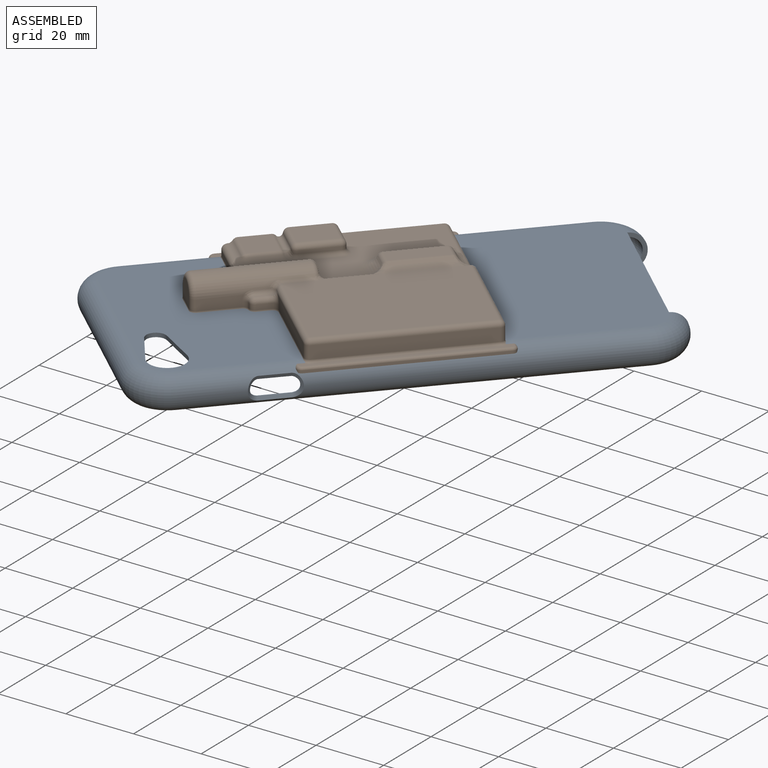
[diagram: assembled view]
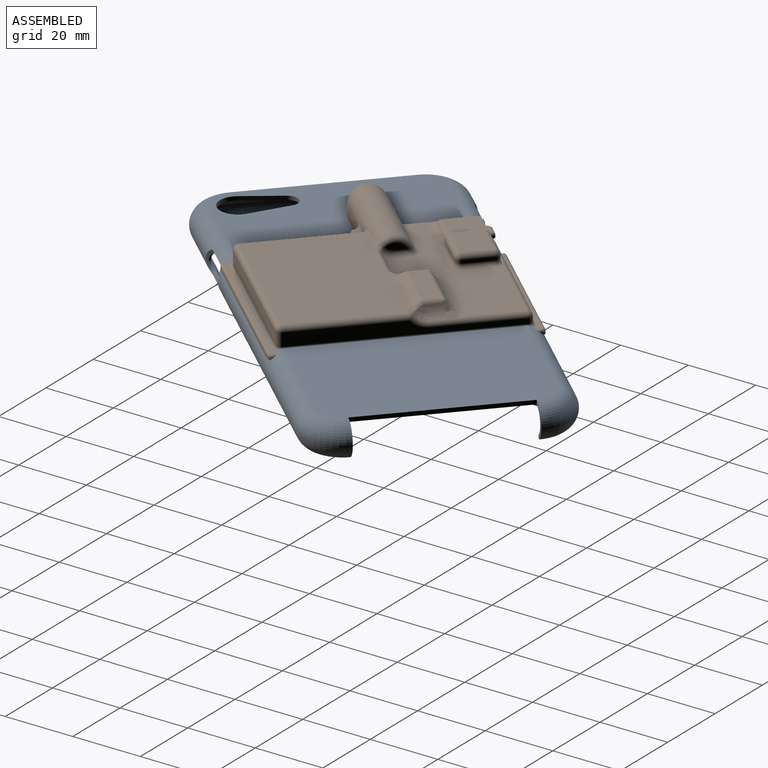
[diagram: assembled view, second angle]
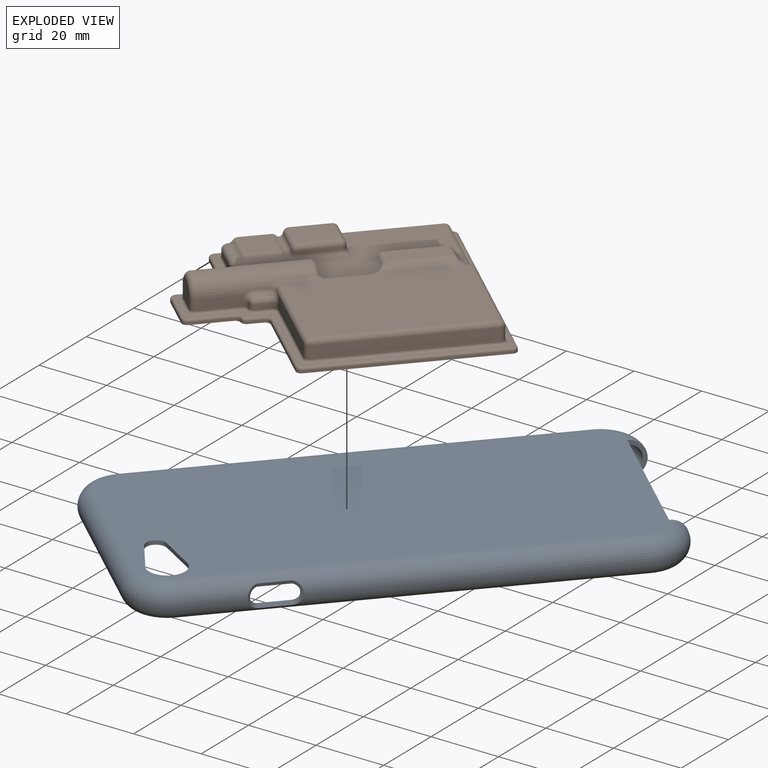
[diagram: exploded view]
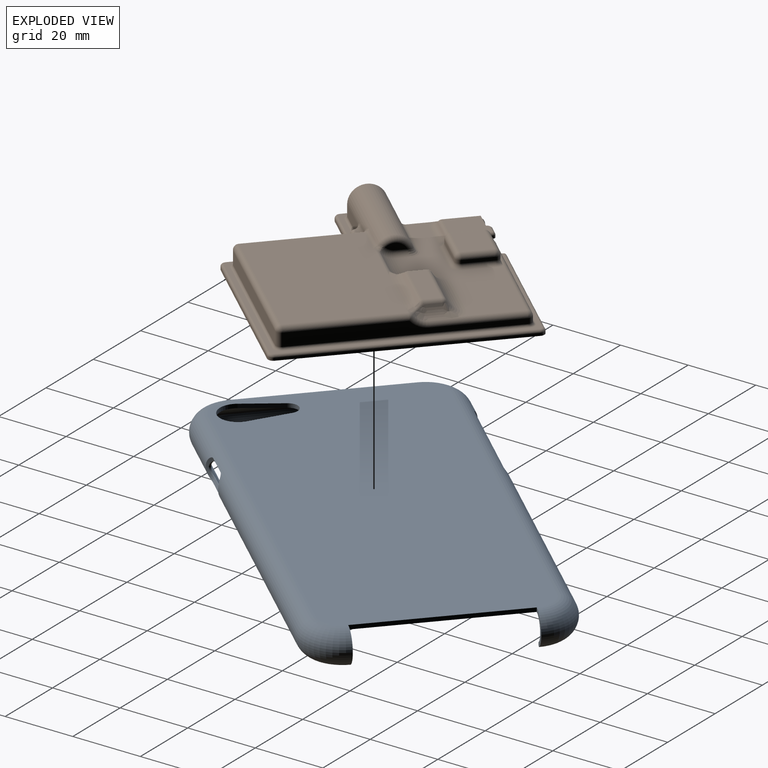
[diagram: exploded view, second angle]
ASSEMBLY  parts=2 mates=2
PART A: 61 faces, bbox 72x143.2x9.4 mm
  f0: plane 131.13x59.96mm, normal (0,0,1), area 7665.3mm2, adj f2,f4,f6,f7,f8,f9,f10,f23
  f1: plane 131.13x59.96mm, normal (0,0,-1), area 7665.3mm2, adj f3,f5,f18,f19,f20,f21,f22,f23
  f2: cylinder r=3.88mm len=117.94mm, axis (0,1,0), area 1146.3mm2, adj f0,f7,f8,f11,f34,f35,f36,f37
  f3: cylinder r=5.07mm len=117.94mm, axis (0,1,0), area 1472.9mm2, adj f1,f18,f21,f43,f45,f46,f47,f48
  f4: cylinder r=3.88mm len=117.94mm, axis (0,1,0), area 1010.2mm2, adj f0,f6,f9,f13,f26,f27,f28,f29
  f5: cylinder r=5.07mm len=117.94mm, axis (0,1,0), area 1262.6mm2, adj f1,f19,f20,f39,f49,f50,f51,f52
  f6: torus R=6.59mm, axis (0,0,-1), area 147.8mm2, adj f0,f4,f17,f25
  f7: torus R=6.59mm, axis (0,0,-1), area 147.8mm2, adj f0,f2,f14,f24
  f8: torus R=6.59mm, axis (0,0,-1), area 147.8mm2, adj f0,f2,f10,f15
  f9: torus R=6.59mm, axis (0,0,-1), area 147.8mm2, adj f0,f4,f10,f16
  f10: cylinder r=3.88mm len=46.77mm, axis (-1,0,0), area 470mm2, adj f0,f8,f9,f12
  f11: plane 117.94x0.51mm, normal (-1,0,0), area 60.3mm2, adj f2,f14,f15,f43
  f12: plane 46.77x0.51mm, normal (0,-1,0), area 23.9mm2, adj f10,f15,f16,f41
  f13: plane 117.94x0.51mm, normal (1,0,0), area 60.3mm2, adj f4,f16,f17,f39
  f14: cylinder r=8.62mm len=8.62mm, axis (0,0,1), area 6.9mm2, adj f7,f11,f24,f44
  f15: cylinder r=8.62mm len=8.62mm, axis (0,0,1), area 6.9mm2, adj f8,f11,f12,f42
  f16: cylinder r=8.62mm len=8.62mm, axis (0,0,1), area 6.9mm2, adj f9,f12,f13,f40
  f17: cylinder r=8.62mm len=8.62mm, axis (0,0,1), area 6.9mm2, adj f6,f13,f25,f38
  f18: torus R=6.59mm, axis (0,0,-1), area 208.7mm2, adj f1,f3,f24,f44
  f19: torus R=6.59mm, axis (0,0,-1), area 208.7mm2, adj f1,f5,f25,f38
  f20: torus R=6.59mm, axis (0,0,-1), area 208.7mm2, adj f1,f5,f22,f40
  f21: torus R=6.59mm, axis (0,0,-1), area 208.7mm2, adj f1,f3,f22,f42
  f22: cylinder r=5.07mm len=46.77mm, axis (-1,0,0), area 607.2mm2, adj f1,f20,f21,f41
  f23: plane 46.77x1.2mm, normal (0,-1,0), area 56.1mm2, adj f0,f1,f24,f25
  f24: plane 9.39x5.08mm, normal (-1,0,0), area 14.2mm2, adj f7,f14,f18,f23,f44
  f25: plane 9.39x5.08mm, normal (1,0,0), area 14.2mm2, adj f6,f17,f19,f23,f38
  f26: plane 32.52x0.23mm, normal (0,0,-1), area 7.4mm2, adj f4,f27,f33,f52
  f27: cylinder r=2.2mm len=2.2mm, axis (1,0,0), area 1.4mm2, adj f4,f26,f28,f54
  f28: plane 0.57x0.15mm, normal (0,1,0), area 0.1mm2, adj f4,f27,f29,f56
  f29: cylinder r=2.2mm len=2.2mm, axis (1,0,0), area 1.3mm2, adj f4,f28,f30,f55
  f30: plane 32.52x0.19mm, normal (0,0,1), area 6.1mm2, adj f4,f29,f31,f53
  f31: cylinder r=2.2mm len=2.2mm, axis (1,0,0), area 1.3mm2, adj f4,f30,f32,f51
  f32: plane 0.57x0.15mm, normal (0,-1,0), area 0.1mm2, adj f4,f31,f33,f49
  f33: cylinder r=2.2mm len=2.2mm, axis (1,0,0), area 1.4mm2, adj f4,f26,f32,f50
  f34: cylinder r=2.24mm len=4.48mm, axis (-1,0,0), area 2.8mm2, adj f2,f35,f37,f47
  f35: plane 8.14x0.21mm, normal (0,0,1), area 1.7mm2, adj f2,f34,f36,f45
  f36: cylinder r=2.24mm len=4.48mm, axis (-1,0,0), area 2.8mm2, adj f2,f35,f37,f46
  f37: plane 8.14x0.21mm, normal (0,0,-1), area 1.7mm2, adj f2,f34,f36,f48
  f38: torus R=9.12mm, axis (0,0,1), area 15.1mm2, adj f17,f19,f25,f39
  f39: cylinder r=0.5mm len=117.94mm, axis (0,1,0), area 127mm2, adj f5,f13,f38,f40
  f40: torus R=9.12mm, axis (0,0,1), area 15.1mm2, adj f16,f20,f39,f41
  f41: cylinder r=0.5mm len=46.77mm, axis (-1,0,0), area 50.4mm2, adj f12,f22,f40,f42
  f42: torus R=9.12mm, axis (0,0,1), area 15.1mm2, adj f15,f21,f41,f43
  f43: cylinder r=0.5mm len=117.94mm, axis (0,1,0), area 127mm2, adj f3,f11,f42,f44
  f44: torus R=9.12mm, axis (0,0,1), area 15.1mm2, adj f14,f18,f24,f43
  f45: plane 8.14x1.05mm, normal (0.91,0,0.42), area 9.4mm2, adj f3,f35,f46,f47
  f46: bspline ~6.59x2.88mm, area 9mm2, adj f3,f36,f45,f48
  f47: bspline ~6.59x2.88mm, area 9mm2, adj f3,f34,f45,f48
  f48: plane 8.14x1.05mm, normal (0.91,0,-0.42), area 9.4mm2, adj f3,f37,f46,f47
  f49: cone r=4.44mm half-angle=45deg, axis (0,1,0), area 0.1mm2, adj f5,f32,f50,f51
  f50: bspline ~3.25x2.84mm, area 4.4mm2, adj f5,f33,f49,f52
  f51: bspline ~3.28x2.84mm, area 4.5mm2, adj f5,f31,f49,f53
  f52: plane 32.52x1.04mm, normal (-0.9,0,-0.43), area 37.4mm2, adj f5,f26,f50,f54
  f53: plane 32.52x1.08mm, normal (-0.92,0,0.39), area 38.2mm2, adj f5,f30,f51,f55
  f54: bspline ~3.25x2.84mm, area 4.4mm2, adj f5,f27,f52,f56
  f55: bspline ~3.28x2.84mm, area 4.5mm2, adj f5,f29,f53,f56
  f56: cone r=5.07mm half-angle=45deg, axis (0,-1,0), area 0.1mm2, adj f5,f28,f54,f55
  f57: plane 11.93x2.36mm, normal (0.19,0.98,0), area 14.6mm2, adj f0,f1,f58,f60
  f58: cylinder r=5.29mm len=10.57mm, axis (0,0,1), area 22.4mm2, adj f0,f1,f57,f59
  f59: plane 11.93x2.36mm, normal (0.19,-0.98,0), area 14.6mm2, adj f0,f1,f58,f60
  f60: cylinder r=2.88mm len=5.64mm, axis (0,0,1), area 9.5mm2, adj f0,f1,f57,f59
PART B: 308 faces, bbox 69.8x76.9x11.3 mm
  f0: plane 16.13x1.65mm, normal (1,0,0), area 24.6mm2, adj f4,f20,f128,f294,f303
  f1: plane 16.89x2.31mm, normal (-1,0,0), area 39mm2, adj f15,f140,f235,f270,f289
  f2: plane 16.61x2.31mm, normal (-1,0,0), area 30.1mm2, adj f5,f15,f262,f264,f270,f286
  f3: plane 16.59x1.52mm, normal (1,0,0), area 25.3mm2, adj f4,f80,f128,f290
  f4: cylinder r=0.76mm len=40.72mm, axis (0,1,0), area 42mm2, adj f0,f3,f18,f195,f291,f293,f295,f304
  f5: plane 61.01x4.6mm, normal (0,1,0), area 180.8mm2, adj f2,f6,f11,f15,f23,f258,f260,f261
  f6: cylinder r=5.08mm len=37.08mm, axis (0,1,0), area 139.4mm2, adj f5,f7,f11,f15,f42,f242,f244,f251
  f7: cylinder r=1.52mm len=18.5mm, axis (0,1,0), area 36.5mm2, adj f6,f35,f244,f245,f259
  f8: plane 5.33x0.41mm, normal (1,0,0), area 2.2mm2, adj f9,f252,f267,f280
  f9: plane 1.02x0.41mm, normal (0,-1,0), area 0.4mm2, adj f8,f252,f266,f281
  f10: plane 8.43x0.08mm, normal (0,0,-1), area 0.6mm2, adj f22,f41,f42,f43
  f11: plane 47.04x30.79mm, normal (0,0,-1), area 1448.1mm2, adj f5,f6,f12,f23,f250,f255
  f12: plane 30.79x4.6mm, normal (0,-1,0), area 140.8mm2, adj f11,f23,f250,f252,f267,f276
  f13: plane 19.43x2.31mm, normal (0,-1,0), area 32.8mm2, adj f14,f15,f24,f246,f247,f249,f265,f269
  f14: plane 10.44x1.02mm, normal (0,0,-1), area 10.6mm2, adj f13,f16,f24,f246
  f15: plane 53.9x25.98mm, normal (0,0,-1), area 794.9mm2, adj f1,f2,f5,f6,f13,f234,f235,f236
  f16: cylinder r=1.52mm len=10.44mm, axis (-1,0,0), area 24mm2, adj f14,f24,f26,f141,f234,f246
  f17: plane 2.79x0.76mm, normal (1,0,0), area 2.1mm2, adj f21,f76,f214,f301
  f18: plane 74.68x67.56mm, normal (0,0,1), area 281.8mm2, adj f4,f195,f196,f197,f198,f199,f200,f201
  f19: plane 1.65x0.25mm, normal (1,0,0), area 0.4mm2, adj f81,f124,f213,f297
  f20: torus R=4.06mm, axis (-1,0,0), area 2.1mm2, adj f0,f127,f128,f141,f149,f302
  f21: plane 76.2x69.09mm, normal (0,0,-1), area 674.7mm2, adj f17,f44,f45,f46,f47,f48,f49,f50
  f22: plane 0.72x0.08mm, normal (0,-1,0), area 0mm2, adj f10,f41,f42
  f23: plane 47.04x4.6mm, normal (1,0,0), area 216.3mm2, adj f5,f11,f12,f274
  f24: plane 2.31x1.04mm, normal (-1,0,0), area 2.4mm2, adj f13,f14,f16,f142,f268
  f25: plane 9.58x0.15mm, normal (0,1,0), area 1.5mm2, adj f27,f28,f141,f235
  f26: plane 9.58x0.15mm, normal (0,-1,0), area 1.5mm2, adj f16,f27,f28,f141
  f27: plane 8.36x0.15mm, normal (1,0,0), area 1.3mm2, adj f25,f26,f28,f234
  f28: plane 9.58x8.36mm, normal (0,0,-1), area 80mm2, adj f25,f26,f27,f141
  f29: plane 8.48x2.24mm, normal (0,-1,0), area 19mm2, adj f30,f32,f33,f237
  f30: plane 10.82x2.24mm, normal (1,0,0), area 24.2mm2, adj f29,f31,f33,f239
  f31: plane 8.48x2.24mm, normal (0,1,0), area 19mm2, adj f30,f32,f33,f238
  f32: plane 10.82x2.24mm, normal (-1,0,0), area 24.2mm2, adj f29,f31,f33,f236
  f33: plane 10.82x8.48mm, normal (0,0,-1), area 91.8mm2, adj f29,f30,f31,f32
  f34: plane 4.75x2.18mm, normal (0,-1,0), area 10.4mm2, adj f35,f37,f38,f244
  f35: plane 16.08x2.18mm, normal (1,0,0), area 35.1mm2, adj f7,f34,f36,f38
  f36: plane 4.75x2.18mm, normal (0,1,0), area 10.4mm2, adj f35,f37,f38,f245
  f37: plane 16.08x2.18mm, normal (-1,0,0), area 35.1mm2, adj f34,f36,f38,f243
  f38: plane 16.08x4.75mm, normal (0,0,-1), area 76.4mm2, adj f34,f35,f36,f37
  f39: plane 7.39x7.04mm, normal (0,-1,0), area 46.7mm2, adj f40,f41,f42,f275
  f40: plane 29.52x3.87mm, normal (-1,0,0), area 49.8mm2, adj f39,f41,f43,f240,f265,f273
  f41: cylinder r=3.52mm len=29.52mm, axis (0,1,0), area 320mm2, adj f10,f22,f39,f40,f42,f43
  f42: plane 35.3x5.08mm, normal (1,0,0), area 126.5mm2, adj f6,f10,f22,f39,f41,f43,f242,f251
  f43: plane 7.04x3.56mm, normal (0,1,0), area 19.3mm2, adj f10,f40,f41,f42,f241,f242
  f44: plane 11.18x0.76mm, normal (-1,0,0), area 8.5mm2, adj f21,f71,f79,f222
  f45: plane 3.85x0.76mm, normal (-1,0,0), area 2.9mm2, adj f21,f72,f194,f225
  f46: plane 27.43x0.76mm, normal (0,1,0), area 20.9mm2, adj f21,f72,f73,f227
  f47: plane 52.07x0.76mm, normal (-1,0,0), area 39.7mm2, adj f21,f73,f74,f229
  f48: plane 66.04x0.76mm, normal (0,-1,0), area 50.3mm2, adj f21,f74,f75,f231
  f49: plane 43.26x0.76mm, normal (1,0,0), area 33mm2, adj f21,f75,f233,f307
  f50: plane 17.91x0.76mm, normal (0,1,0), area 13.6mm2, adj f21,f76,f77,f216
  f51: plane 11.18x0.76mm, normal (1,0,0), area 8.5mm2, adj f21,f77,f78,f218
  f52: plane 12.07x0.76mm, normal (0,1,0), area 9.2mm2, adj f21,f78,f79,f220
  f53: plane 10.77x8.43mm, normal (0,0,1), area 90.8mm2, adj f103,f106,f107,f110
  f54: plane 16.03x4.7mm, normal (0,0,1), area 75.3mm2, adj f91,f94,f95,f98
  f55: plane 10.77x0.97mm, normal (-1,0,0), area 10.4mm2, adj f99,f100,f110,f150
  f56: plane 8.43x0.97mm, normal (0,-1,0), area 8.1mm2, adj f100,f101,f107,f146
  f57: plane 10.77x1.41mm, normal (1,0,0), area 15.2mm2, adj f101,f102,f103,f145
  f58: plane 46.99x31.51mm, normal (0,0,1), area 1477.1mm2, adj f86,f133,f135,f137,f168,f170
  f59: plane 9.53x8.31mm, normal (0,0,1), area 79.1mm2, adj f111,f113,f115,f126
  f60: plane 53.85x24.46mm, normal (0,0,1), area 590.7mm2, adj f85,f117,f118,f119,f120,f128,f130,f144
  f61: plane 5.65x2.03mm, normal (0,-1,0), area 8.1mm2, adj f90,f165,f167
  f62: cylinder r=5.02mm len=29.46mm, axis (0,1,0), area 408.1mm2, adj f63,f64,f88,f90,f162,f163,f166,f168
  f63: plane 11.62x3.11mm, normal (1,0,0), area 35mm2, adj f62,f87,f160,f161,f209
  f64: plane 11.67x3.11mm, normal (-1,0,0), area 35.1mm2, adj f62,f89,f172,f173,f205
  f65: plane 6.99x6.6mm, normal (0,1,0), area 40.9mm2, adj f87,f88,f89,f207
  f66: plane 3.81x1.52mm, normal (-1,0,0), area 5.8mm2, adj f82,f138,f179,f202
  f67: plane 60.96x3.81mm, normal (0,-1,0), area 168.4mm2, adj f80,f84,f130,f131,f133,f196
  f68: plane 46.99x3.81mm, normal (-1,0,0), area 179mm2, adj f83,f84,f135,f198
  f69: plane 17.91x1.59mm, normal (0,1,0), area 28mm2, adj f81,f120,f121,f122,f160,f211
  f70: plane 28.46x3.81mm, normal (0,1,0), area 105.2mm2, adj f83,f137,f178,f179,f200
  f71: cylinder r=1.52mm len=1.5mm, axis (0,0,1), area 1.6mm2, adj f21,f44,f194,f223
  f72: cylinder r=1.52mm len=1.52mm, axis (0,0,1), area 1.8mm2, adj f21,f45,f46,f226
  f73: cylinder r=1.52mm len=1.52mm, axis (0,0,-1), area 1.8mm2, adj f21,f46,f47,f228
  f74: cylinder r=1.52mm len=1.52mm, axis (0,0,-1), area 1.8mm2, adj f21,f47,f48,f230
  f75: cylinder r=1.52mm len=1.52mm, axis (0,0,-1), area 1.8mm2, adj f21,f48,f49,f232
  f76: cylinder r=1.52mm len=1.52mm, axis (0,0,-1), area 1.8mm2, adj f17,f21,f50,f215
  f77: cylinder r=1.52mm len=1.52mm, axis (0,0,1), area 1.8mm2, adj f21,f50,f51,f217
  f78: cylinder r=1.52mm len=1.52mm, axis (0,0,-1), area 1.8mm2, adj f21,f51,f52,f219
  f79: cylinder r=1.52mm len=1.52mm, axis (0,0,-1), area 1.8mm2, adj f21,f44,f52,f221
  f80: cylinder r=1.52mm len=1.52mm, axis (0,0,-1), area 3.6mm2, adj f3,f67,f129,f195
  f81: cylinder r=1.52mm len=1.59mm, axis (0,0,-1), area 3.8mm2, adj f19,f69,f123,f212
  f82: cylinder r=1.52mm len=1.52mm, axis (0,0,-1), area 3.3mm2, adj f66,f139,f172,f203
  f83: cylinder r=1.52mm len=3.81mm, axis (0,0,1), area 9.1mm2, adj f68,f70,f136,f199
  f84: cylinder r=1.52mm len=3.81mm, axis (0,0,-1), area 9.1mm2, adj f67,f68,f134,f197
  f85: cylinder r=5.08mm len=9.93mm, axis (0,1,0), area 43.2mm2, adj f60,f86,f167,f169,f180
  f86: cylinder r=1.52mm len=37.32mm, axis (0,1,0), area 18.1mm2, adj f58,f85,f132,f171,f182,f184,f186,f188
  f87: cylinder r=1.52mm len=3.11mm, axis (0,0,1), area 7.4mm2, adj f63,f65,f88,f208
  f88: torus R=3.49mm, axis (0,1,0), area 33.6mm2, adj f62,f65,f87,f89
  f89: cylinder r=1.52mm len=3.11mm, axis (0,0,-1), area 7.4mm2, adj f64,f65,f88,f206
  f90: torus R=3.49mm, axis (0,-1,0), area 23.2mm2, adj f61,f62,f164,f169,f170,f171
  f91: cylinder r=1.52mm len=16.03mm, axis (0,1,0), area 16.4mm2, adj f54,f92,f93,f186
  f92: sphere r=1.52mm, area 1.2mm2, adj f91,f94,f184
  f93: sphere r=1.52mm, area 1.1mm2, adj f91,f95,f188,f190
  f94: cylinder r=1.52mm len=4.7mm, axis (1,0,0), area 7.9mm2, adj f54,f92,f96,f181,f182
  f95: cylinder r=1.52mm len=4.7mm, axis (-1,0,0), area 8.5mm2, adj f54,f93,f97,f191,f192,f193
  f96: sphere r=1.52mm, area 1.3mm2, adj f94,f98,f183
  f97: sphere r=1.52mm, area 2.1mm2, adj f95,f98,f187,f189
  f98: cylinder r=1.52mm len=16.03mm, axis (0,-1,0), area 27.3mm2, adj f54,f96,f97,f185
  f99: cylinder r=1.52mm len=1.49mm, axis (0,0,1), area 1.7mm2, adj f55,f108,f152,f154,f156
  f100: cylinder r=1.52mm len=1.52mm, axis (0,0,-1), area 2.3mm2, adj f55,f56,f109,f148
  f101: cylinder r=1.52mm len=1.52mm, axis (0,0,1), area 2.6mm2, adj f56,f57,f105,f143,f144
  f102: cylinder r=1.52mm len=1.41mm, axis (0,0,-1), area 1.3mm2, adj f57,f104,f147,f149,f151,f153
  f103: cylinder r=1.52mm len=10.77mm, axis (0,-1,0), area 25.8mm2, adj f53,f57,f104,f105
  f104: sphere r=1.52mm, area 3.5mm2, adj f102,f103,f106,f155
  f105: sphere r=1.52mm, area 3.6mm2, adj f101,f103,f107
  f106: cylinder r=1.52mm len=8.43mm, axis (1,0,0), area 18.3mm2, adj f53,f104,f108,f157,f159
  f107: cylinder r=1.52mm len=8.43mm, axis (-1,0,0), area 20.2mm2, adj f53,f56,f105,f109
  f108: sphere r=1.52mm, area 3.6mm2, adj f99,f106,f110,f158
  f109: sphere r=1.52mm, area 3.6mm2, adj f100,f107,f110
  f110: cylinder r=1.52mm len=10.77mm, axis (0,1,0), area 25.8mm2, adj f53,f55,f108,f109
  f111: cylinder r=1.52mm len=9.53mm, axis (1,0,0), area 13.7mm2, adj f59,f112,f116,f125
  f112: sphere r=1.52mm, area 2mm2, adj f111,f113,f117
  f113: cylinder r=1.52mm len=8.31mm, axis (0,1,0), area 11.9mm2, adj f59,f112,f114,f118
  f114: sphere r=1.52mm, area 1mm2, adj f113,f115,f119,f156,f158,f159
  f115: cylinder r=1.52mm len=9.53mm, axis (-1,0,0), area 7.1mm2, adj f59,f114,f127,f153,f155,f157
  f116: cylinder r=2.54mm len=9.53mm, axis (1,0,0), area 18.3mm2, adj f111,f117,f122,f124
  f117: torus R=3.29mm, axis (0,0,1), area 7.7mm2, adj f60,f112,f116,f118,f121
  f118: cylinder r=2.54mm len=8.31mm, axis (0,1,0), area 19.9mm2, adj f60,f113,f117,f119
  f119: torus R=3.29mm, axis (0,0,1), area 3.4mm2, adj f60,f114,f118,f154
  f120: cylinder r=1.52mm len=6.46mm, axis (1,0,0), area 15.2mm2, adj f60,f69,f121,f161,f162
  f121: bspline ~3.75x1.67mm, area 4.6mm2, adj f69,f117,f120,f122
  f122: cylinder r=1.52mm len=9.53mm, axis (1,0,0), area 20.1mm2, adj f69,f116,f121,f123
  f123: sphere r=1.52mm, area 2mm2, adj f81,f122,f124
  f124: torus R=4.06mm, axis (-1,0,0), area 0.8mm2, adj f19,f116,f123,f125,f141,f296
  f125: sphere r=1.52mm, area 0mm2, adj f111,f124,f126,f141
  f126: cylinder r=1.52mm len=8.31mm, axis (0,-1,0), area 0.2mm2, adj f59,f125,f127,f141
  f127: sphere r=1.52mm, area 0mm2, adj f20,f115,f126,f141,f151
  f128: cylinder r=1.52mm len=39.71mm, axis (0,-1,0), area 93.4mm2, adj f0,f3,f20,f60,f129,f143,f145,f147
  f129: sphere r=1.52mm, area 3.6mm2, adj f80,f128,f130
  f130: cylinder r=1.52mm len=24.46mm, axis (-1,0,0), area 54.8mm2, adj f60,f67,f129,f131,f189,f191
  f131: torus R=6.6mm, axis (0,1,0), area 9.1mm2, adj f67,f130,f132,f193
  f132: sphere r=1.52mm, area 1.7mm2, adj f86,f131,f133,f190,f192
  f133: cylinder r=1.52mm len=31.5mm, axis (-1,0,0), area 75.4mm2, adj f58,f67,f132,f134
  f134: sphere r=1.52mm, area 3.6mm2, adj f84,f133,f135
  f135: cylinder r=1.52mm len=46.99mm, axis (0,1,0), area 112.5mm2, adj f58,f68,f134,f136
  f136: sphere r=1.52mm, area 5mm2, adj f83,f135,f137
  f137: cylinder r=1.52mm len=31.15mm, axis (1,0,0), area 72.8mm2, adj f58,f70,f136,f166,f177
  f138: cylinder r=1.52mm len=3.9mm, axis (0,1,0), area 8.5mm2, adj f66,f139,f175,f177,f178
  f139: sphere r=1.52mm, area 3.1mm2, adj f82,f138,f173,f174
  f140: plane 4.73x3.28mm, normal (0,1,0), area 5.3mm2, adj f1,f21,f141,f270,f302,f303,f304,f305
  f141: plane 13.39x3.22mm, normal (1,0,0), area 20.8mm2, adj f16,f20,f25,f26,f28,f124,f125,f126
  f142: plane 4.73x3.28mm, normal (0,-1,0), area 5.3mm2, adj f21,f24,f141,f268,f296,f297,f298,f299
  f143: bspline ~2.68x1.4mm, area 1.9mm2, adj f101,f128,f144,f145
  f144: torus R=2.79mm, axis (0,0,1), area 2.8mm2, adj f60,f101,f143,f146
  f145: cylinder r=1.27mm len=10.77mm, axis (0,1,0), area 9.7mm2, adj f57,f128,f143,f147
  f146: cylinder r=1.27mm len=8.43mm, axis (1,0,0), area 16.8mm2, adj f56,f60,f144,f148
  f147: bspline ~1.31x1.04mm, area 0.5mm2, adj f102,f128,f145,f149
  f148: torus R=2.79mm, axis (0,0,1), area 6.2mm2, adj f60,f100,f146,f150
  f149: bspline ~2.51x1.79mm, area 2.9mm2, adj f20,f102,f147,f151
  f150: cylinder r=1.27mm len=10.77mm, axis (0,-1,0), area 21.5mm2, adj f55,f60,f148,f152
  f151: bspline ~2x1.92mm, area 0.5mm2, adj f102,f127,f149,f153
  f152: torus R=2.79mm, axis (0,0,1), area 3.3mm2, adj f60,f99,f150,f154
  f153: bspline ~2.1x2.01mm, area 0.2mm2, adj f102,f115,f151,f155
  f154: bspline ~2.81x2.28mm, area 3.6mm2, adj f99,f119,f152,f156
  f155: bspline ~2.2x2.2mm, area 2.8mm2, adj f104,f115,f153,f157
  f156: bspline ~1.98x1.78mm, area 0.8mm2, adj f99,f114,f154,f158
  f157: cylinder r=1.27mm len=7.7mm, axis (1,0,0), area 18.6mm2, adj f106,f115,f155,f159
  f158: torus R=1.58mm, axis (0.16,0.88,-0.45), area 0.5mm2, adj f108,f114,f156,f159
  f159: bspline ~1.88x1.85mm, area 1.2mm2, adj f106,f114,f157,f158
  f160: cylinder r=1.52mm len=1.52mm, axis (0,0,1), area 3.6mm2, adj f63,f69,f161,f210
  f161: torus R=3.05mm, axis (1,0,0), area 2.7mm2, adj f63,f120,f160,f162
  f162: bspline ~3.55x2.2mm, area 4.5mm2, adj f62,f120,f161,f163
  f163: cylinder r=1.52mm len=15.24mm, axis (0,1,0), area 31.3mm2, adj f60,f62,f162,f164
  f164: bspline ~4x3.55mm, area 7.5mm2, adj f60,f90,f163,f165
  f165: cylinder r=1.52mm len=3.18mm, axis (-1,0,0), area 7.6mm2, adj f60,f61,f164,f167
  f166: bspline ~3.66x2.37mm, area 5.1mm2, adj f62,f137,f168,f176
  f167: torus R=3.56mm, axis (0,-1,0), area 8.3mm2, adj f61,f85,f165,f169
  f168: cylinder r=1.52mm len=8.38mm, axis (0,1,0), area 12.3mm2, adj f58,f62,f166,f170
  f169: bspline ~1.9x1.67mm, area 0.7mm2, adj f85,f90,f167,f171
  f170: bspline ~1.98x1.59mm, area 1.5mm2, adj f58,f90,f168,f171
  f171: bspline ~2.58x2.48mm, area 3.3mm2, adj f86,f90,f169,f170
  f172: cylinder r=1.52mm len=1.52mm, axis (0,0,-1), area 3.3mm2, adj f64,f82,f173,f204
  f173: torus R=3.01mm, axis (-1,0,0), area 2.5mm2, adj f64,f139,f172,f174
  f174: bspline ~3.01x2.19mm, area 4mm2, adj f62,f139,f173,f175
  f175: cylinder r=1.52mm len=3.9mm, axis (0,-1,0), area 7.3mm2, adj f62,f138,f174,f176
  f176: sphere r=1.52mm, area 3.4mm2, adj f166,f175,f177
  f177: bspline ~2.72x1.73mm, area 2.6mm2, adj f137,f138,f176,f178
  f178: torus R=3.05mm, axis (0,1,0), area 4.2mm2, adj f70,f138,f177,f179
  f179: cylinder r=1.52mm len=1.52mm, axis (0,0,-1), area 3.6mm2, adj f66,f70,f178,f201
  f180: sphere r=5.08mm, area 14.8mm2, adj f85,f181,f182
  f181: cylinder r=5.08mm len=4.57mm, axis (1,0,0), area 23.1mm2, adj f60,f94,f180,f183
  f182: bspline ~4.8x4.27mm, area 2.2mm2, adj f86,f94,f180,f184
  f183: torus R=5.94mm, axis (0,0,1), area 30.1mm2, adj f60,f96,f181,f185
  f184: bspline ~6.84x4.51mm, area 13.5mm2, adj f86,f92,f182,f186
  f185: cylinder r=5.08mm len=16.03mm, axis (0,-1,0), area 90.9mm2, adj f60,f98,f183,f187
  f186: cylinder r=5.08mm len=16.03mm, axis (0,-1,0), area 57.8mm2, adj f86,f91,f184,f188
  f187: torus R=5.94mm, axis (0,0,1), area 12.8mm2, adj f60,f97,f185,f189
  f188: bspline ~5.21x3.82mm, area 8.4mm2, adj f86,f93,f186,f190
  f189: bspline ~5.71x3.66mm, area 12mm2, adj f97,f130,f187,f191
  f190: torus R=5.91mm, axis (0.74,0.63,0.24), area 3.1mm2, adj f93,f132,f188,f192
  f191: cylinder r=5.08mm len=4.06mm, axis (-1,0,0), area 16.8mm2, adj f95,f130,f189,f193
  f192: bspline ~4.15x3.01mm, area 0.8mm2, adj f95,f132,f190,f193
  f193: bspline ~5.53x2.92mm, area 10.8mm2, adj f95,f131,f191,f192
  f194: cylinder r=1.52mm len=1.5mm, axis (0,0,1), area 1.6mm2, adj f21,f45,f71,f224
  f195: torus R=2.29mm, axis (0,0,1), area 3.4mm2, adj f4,f18,f80,f196
  f196: cylinder r=0.76mm len=60.96mm, axis (1,0,0), area 73mm2, adj f18,f67,f195,f197
  f197: torus R=2.29mm, axis (0,0,1), area 3.4mm2, adj f18,f84,f196,f198
  f198: cylinder r=0.76mm len=46.99mm, axis (0,-1,0), area 56.2mm2, adj f18,f68,f197,f199
  f199: torus R=2.29mm, axis (0,0,1), area 3.4mm2, adj f18,f83,f198,f200
  f200: cylinder r=0.76mm len=27.43mm, axis (-1,0,0), area 32.8mm2, adj f18,f70,f199,f201
  f201: torus R=0.76mm, axis (0,0,1), area 2.3mm2, adj f18,f179,f200,f202
  f202: cylinder r=0.76mm len=3.81mm, axis (0,-1,0), area 4.6mm2, adj f18,f66,f201,f203
  f203: torus R=2.29mm, axis (0,0,1), area 3mm2, adj f18,f82,f202,f204
  f204: torus R=0.76mm, axis (0,0,1), area 2.1mm2, adj f18,f172,f203,f205
  f205: cylinder r=0.76mm len=11.22mm, axis (0,-1,0), area 13.4mm2, adj f18,f64,f204,f206
  f206: torus R=2.29mm, axis (0,0,1), area 3.4mm2, adj f18,f89,f205,f207
  f207: cylinder r=0.76mm len=6.99mm, axis (-1,0,0), area 8.4mm2, adj f18,f65,f206,f208
  f208: torus R=2.29mm, axis (0,0,1), area 3.4mm2, adj f18,f87,f207,f209
  f209: cylinder r=0.76mm len=11.18mm, axis (0,1,0), area 13.4mm2, adj f18,f63,f208,f210
  f210: torus R=0.76mm, axis (0,0,1), area 2.3mm2, adj f18,f160,f209,f211
  f211: cylinder r=0.76mm len=17.91mm, axis (-1,0,0), area 21.4mm2, adj f18,f69,f210,f212
  f212: torus R=2.29mm, axis (0,0,1), area 3.4mm2, adj f18,f81,f211,f213
  f213: cylinder r=0.76mm len=0.76mm, axis (0,1,0), area 0.3mm2, adj f18,f19,f212,f298
  f214: cylinder r=0.76mm len=2.79mm, axis (0,-1,0), area 3.3mm2, adj f17,f18,f215,f300
  f215: torus R=0.76mm, axis (0,0,1), area 2.3mm2, adj f18,f76,f214,f216
  f216: cylinder r=0.76mm len=17.91mm, axis (1,0,0), area 21.4mm2, adj f18,f50,f215,f217
  f217: torus R=2.29mm, axis (0,0,1), area 3.4mm2, adj f18,f77,f216,f218
  f218: cylinder r=0.76mm len=11.18mm, axis (0,-1,0), area 13.4mm2, adj f18,f51,f217,f219
  f219: torus R=0.76mm, axis (0,0,1), area 2.3mm2, adj f18,f78,f218,f220
  f220: cylinder r=0.76mm len=12.07mm, axis (1,0,0), area 14.4mm2, adj f18,f52,f219,f221
  f221: torus R=0.76mm, axis (0,0,1), area 2.3mm2, adj f18,f79,f220,f222
  f222: cylinder r=0.76mm len=11.18mm, axis (0,1,0), area 13.4mm2, adj f18,f44,f221,f223
  f223: torus R=2.29mm, axis (0,0,1), area 3mm2, adj f18,f71,f222,f224
  f224: torus R=0.76mm, axis (0,0,1), area 2.1mm2, adj f18,f194,f223,f225
  f225: cylinder r=0.76mm len=3.85mm, axis (0,1,0), area 4.6mm2, adj f18,f45,f224,f226
  f226: torus R=2.29mm, axis (0,0,1), area 3.4mm2, adj f18,f72,f225,f227
  f227: cylinder r=0.76mm len=27.43mm, axis (1,0,0), area 32.8mm2, adj f18,f46,f226,f228
  f228: torus R=0.76mm, axis (0,0,1), area 2.3mm2, adj f18,f73,f227,f229
  f229: cylinder r=0.76mm len=52.07mm, axis (0,1,0), area 62.3mm2, adj f18,f47,f228,f230
  f230: torus R=0.76mm, axis (0,0,1), area 2.3mm2, adj f18,f74,f229,f231
  f231: cylinder r=0.76mm len=66.04mm, axis (-1,0,0), area 79mm2, adj f18,f48,f230,f232
  f232: torus R=0.76mm, axis (0,0,1), area 2.3mm2, adj f18,f75,f231,f233
  f233: cylinder r=0.76mm len=43.26mm, axis (0,-1,0), area 51.8mm2, adj f18,f49,f232,f306
  f234: cylinder r=1.52mm len=10.74mm, axis (0,-1,0), area 22.2mm2, adj f15,f16,f27,f235,f246,f248
  f235: cylinder r=1.52mm len=11.1mm, axis (1,0,0), area 24.2mm2, adj f1,f15,f25,f141,f234
  f236: cylinder r=1.52mm len=13.87mm, axis (0,-1,0), area 29.6mm2, adj f15,f32,f237,f238
  f237: cylinder r=1.52mm len=11.53mm, axis (1,0,0), area 24mm2, adj f15,f29,f236,f239
  f238: cylinder r=1.52mm len=11.53mm, axis (-1,0,0), area 24mm2, adj f15,f31,f236,f239
  f239: cylinder r=1.52mm len=13.87mm, axis (0,1,0), area 29.6mm2, adj f15,f30,f237,f238
  f240: cylinder r=1.52mm len=18.34mm, axis (0,1,0), area 40.3mm2, adj f15,f40,f241,f265
  f241: cylinder r=1.52mm len=6.55mm, axis (1,0,0), area 13.9mm2, adj f15,f43,f240,f242
  f242: torus R=3.56mm, axis (0,-1,0), area 5.4mm2, adj f6,f42,f43,f241
  f243: cylinder r=1.52mm len=18.75mm, axis (0,-1,0), area 41.1mm2, adj f15,f37,f244,f245,f259
  f244: cylinder r=1.52mm len=7.56mm, axis (1,0,0), area 13.9mm2, adj f6,f7,f15,f34,f243
  f245: cylinder r=1.52mm len=7.04mm, axis (-1,0,0), area 11.8mm2, adj f7,f36,f243,f259
  f246: plane 2.31x2.06mm, normal (1,0,0), area 4.5mm2, adj f13,f14,f16,f234,f248,f249
  f247: plane 2.31x1.91mm, normal (-1,0,0), area 4.4mm2, adj f13,f15,f248,f249
  f248: plane 6.35x2.06mm, normal (0,-1,0), area 12.1mm2, adj f15,f234,f246,f247,f249
  f249: plane 6.35x2.31mm, normal (0,0,-1), area 14.7mm2, adj f13,f246,f247,f248
  f250: plane 13.74x4.19mm, normal (-1,0,0), area 57.6mm2, adj f11,f12,f251,f252
  f251: plane 4.19x2.24mm, normal (0,-1,0), area 6.9mm2, adj f6,f42,f250,f252
  f252: plane 22.12x4.06mm, normal (0,0,-1), area 49.1mm2, adj f8,f9,f12,f42,f250,f251,f266,f267
  f253: plane 6.35x2.05mm, normal (1,0,0), area 13mm2, adj f6,f254,f256,f257
  f254: plane 4.19x3.05mm, normal (0,1,0), area 8.6mm2, adj f6,f253,f255,f257
  f255: plane 6.35x4.19mm, normal (-1,0,0), area 26.6mm2, adj f11,f254,f256,f257
  f256: plane 4.19x3.05mm, normal (0,-1,0), area 8.6mm2, adj f6,f253,f255,f257
  f257: plane 6.35x3.05mm, normal (0,0,-1), area 19.4mm2, adj f253,f254,f255,f256
  f258: plane 2.54x1.91mm, normal (1,0,0), area 4.8mm2, adj f5,f15,f259,f261
  f259: plane 12.17x2.05mm, normal (0,1,0), area 23.6mm2, adj f6,f7,f15,f243,f245,f258,f260,f261
  f260: plane 2.54x2.05mm, normal (-1,0,0), area 5.2mm2, adj f5,f6,f259,f261
  f261: plane 12.17x2.54mm, normal (0,0,-1), area 30.9mm2, adj f5,f258,f259,f260
  f262: plane 5.36x1.91mm, normal (0,1,0), area 10.2mm2, adj f2,f15,f263,f264
  f263: plane 4.34x1.91mm, normal (-1,0,0), area 8.3mm2, adj f5,f15,f262,f264
  f264: plane 5.36x4.34mm, normal (0,0,-1), area 23.3mm2, adj f2,f5,f262,f263
  f265: cylinder r=1.52mm len=3.84mm, axis (0,0,-1), area 7.4mm2, adj f13,f40,f240,f271
  f266: cylinder r=1.52mm len=1.52mm, axis (0,0,1), area 1mm2, adj f9,f42,f252,f279
  f267: cylinder r=1.52mm len=1.52mm, axis (0,0,1), area 1mm2, adj f8,f12,f252,f278
  f268: cylinder r=1.52mm len=2.57mm, axis (0,-1,0), area 4.3mm2, adj f21,f24,f142,f269
  f269: cylinder r=1.52mm len=20.96mm, axis (1,0,0), area 48.3mm2, adj f13,f21,f268,f271
  f270: cylinder r=1.52mm len=43.03mm, axis (0,-1,0), area 98.4mm2, adj f1,f2,f21,f140,f272,f286,f288,f289
  f271: sphere r=1.52mm, area 3.6mm2, adj f265,f269,f273
  f272: cylinder r=1.52mm len=64.06mm, axis (-1,0,0), area 149.7mm2, adj f5,f21,f270,f274
  f273: cylinder r=1.52mm len=14.22mm, axis (0,1,0), area 32.2mm2, adj f21,f40,f271,f275
  f274: cylinder r=1.52mm len=50.09mm, axis (0,1,0), area 116.3mm2, adj f21,f23,f272,f276
  f275: cylinder r=1.52mm len=10.08mm, axis (1,0,0), area 20.5mm2, adj f21,f39,f273,f277
  f276: cylinder r=1.52mm len=30.48mm, axis (1,0,0), area 71.1mm2, adj f12,f21,f274,f278
  f277: cylinder r=1.52mm len=14.22mm, axis (0,1,0), area 32.2mm2, adj f21,f42,f275,f279
  f278: sphere r=1.52mm, area 3.6mm2, adj f267,f276,f280
  f279: sphere r=1.52mm, area 3.6mm2, adj f266,f277,f281
  f280: cylinder r=1.52mm len=6.86mm, axis (0,1,0), area 14.6mm2, adj f8,f21,f278,f281
  f281: cylinder r=1.52mm len=2.54mm, axis (1,0,0), area 4.3mm2, adj f9,f21,f279,f280
  f282: plane 6.74x0.32mm, normal (0,0,-1), area 2.2mm2, adj f283,f284,f286,f287,f289,f292
  f283: plane 1.85x0.37mm, normal (0,-1,0), area 0.5mm2, adj f282,f285,f289,f294,f295
  f284: plane 1.85x0.37mm, normal (0,1,0), area 0.5mm2, adj f282,f285,f286,f290,f291
  f285: plane 7.32x1.05mm, normal (0,0,1), area 6.8mm2, adj f283,f284,f288,f291,f293,f295
  f286: cylinder r=0.64mm len=2.61mm, axis (0,0,1), area 2.2mm2, adj f2,f270,f282,f284,f287,f288
  f287: cylinder r=0.64mm len=8mm, axis (0,1,0), area 4.6mm2, adj f15,f282,f286,f289
  f288: cylinder r=0.64mm len=7.62mm, axis (0,-1,0), area 5.8mm2, adj f270,f285,f286,f289
  f289: cylinder r=0.64mm len=2.61mm, axis (0,0,-1), area 2.2mm2, adj f1,f270,f282,f283,f287,f288
  f290: cylinder r=0.64mm len=1.74mm, axis (0,0,1), area 1.5mm2, adj f3,f128,f284,f291,f292
  f291: torus R=1.4mm, axis (0,-1,0), area 0.7mm2, adj f4,f284,f285,f290,f293
  f292: cylinder r=0.64mm len=7.72mm, axis (0,1,0), area 6.2mm2, adj f128,f282,f290,f294
  f293: cylinder r=0.64mm len=8mm, axis (0,1,0), area 2.3mm2, adj f4,f285,f291,f295
  f294: cylinder r=0.64mm len=1.74mm, axis (0,0,-1), area 1.5mm2, adj f0,f128,f283,f292,f295
  f295: torus R=1.4mm, axis (0,-1,0), area 0.7mm2, adj f4,f283,f285,f293,f294
  f296: bspline ~2.05x1.61mm, area 2.7mm2, adj f124,f141,f142,f297
  f297: cylinder r=0.76mm len=1.65mm, axis (0,0,-1), area 2mm2, adj f19,f142,f296,f298
  f298: torus R=1.52mm, axis (0,-1,0), area 2mm2, adj f142,f213,f297,f299
  f299: cylinder r=0.76mm len=1.02mm, axis (1,0,0), area 1.2mm2, adj f18,f142,f298,f300
  f300: sphere r=0.76mm, area 1.2mm2, adj f214,f299,f301
  f301: cylinder r=0.76mm len=0.76mm, axis (0,0,-1), area 0.9mm2, adj f17,f21,f142,f300
  f302: bspline ~2.05x1.61mm, area 2.7mm2, adj f20,f140,f141,f303
  f303: cylinder r=0.76mm len=1.65mm, axis (0,0,1), area 2mm2, adj f0,f140,f302,f304
  f304: torus R=1.52mm, axis (0,1,0), area 2mm2, adj f4,f140,f303,f305
  f305: cylinder r=0.76mm len=1.02mm, axis (-1,0,0), area 1.2mm2, adj f18,f140,f304,f306
  f306: sphere r=0.76mm, area 0.6mm2, adj f233,f305,f307
  f307: cylinder r=0.76mm len=0.76mm, axis (0,0,-1), area 0.9mm2, adj f21,f49,f140,f306
PLACE A rot(axis=(-0.93,0.36,0),180deg) t=(-50.44,-159.25,62)mm
PLACE B rot(axis=(0,0,1),137.5deg) t=(-53.99,-162.94,65.14)mm
MATE slider B.f257 <-> A.f1  axis (0,0,1) through (-49.91,-158.07,67.07)mm
MATE parallel A.f0 <-> B.f21  axis (0,0,-1) through (-49.91,-158.07,65.87)mm
